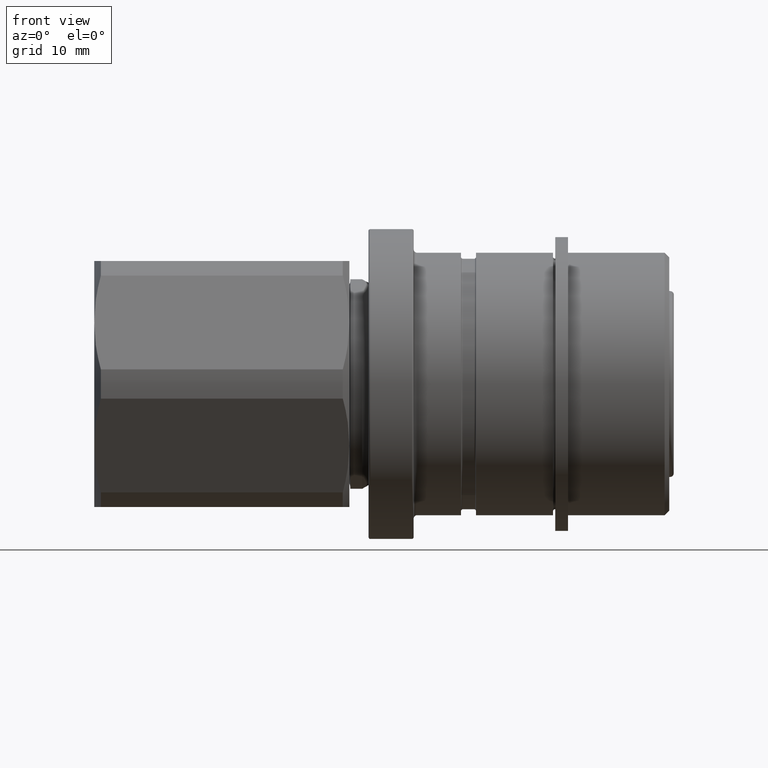
[diagram: clean part render]
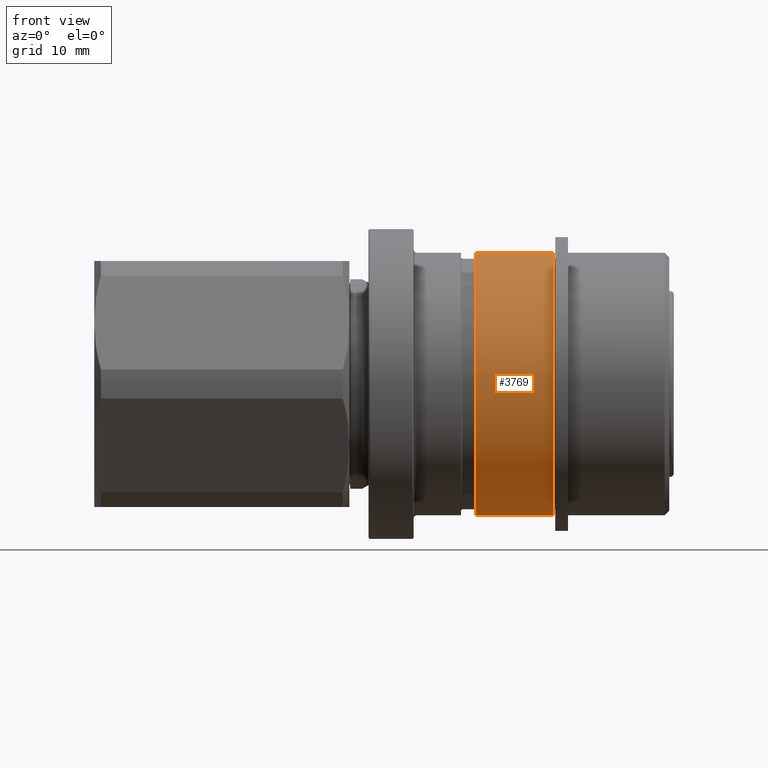
[diagram: same view with one face highlighted and labeled with its STEP entity id]
A machine part, front view. The second image highlights one B-rep face of the part: STEP entity #3769.
In plain terms, the highlighted cylindrical surface (partial cylindrical patch) has radius 14.4 mm, axis along (-1, -0, -0).
Its self-contained STEP definition (entity closure, byte-faithful):
#17 = DIRECTION ( 'NONE',  ( -1.000000000000000000, -0.0000000000000000000, -0.0000000000000000000 ) ) ;
#113 = DIRECTION ( 'NONE',  ( 0.0000000000000000000, 0.0000000000000000000, 1.000000000000000000 ) ) ;
#138 = CARTESIAN_POINT ( 'NONE',  ( 29.20000000000000300, -0.02927498360198051200, 4.102387834613020600E-016 ) ) ;
#181 = EDGE_CURVE ( 'NONE', #4257, #4134, #1485, .T. ) ;
#308 = EDGE_CURVE ( 'NONE', #4134, #4242, #1045, .T. ) ;
#372 = EDGE_CURVE ( 'NONE', #4283, #4242, #1110, .T. ) ;
#387 = AXIS2_PLACEMENT_3D ( 'NONE', #3060, #2903, #3127 ) ;
#398 = EDGE_CURVE ( 'NONE', #4257, #4283, #1138, .T. ) ;
#507 = FACE_OUTER_BOUND ( 'NONE', #1376, .T. ) ;
#508 = CYLINDRICAL_SURFACE ( 'NONE', #867, 14.40000000000000000 ) ;
#751 = AXIS2_PLACEMENT_3D ( 'NONE', #2118, #2071, #2197 ) ;
#867 = AXIS2_PLACEMENT_3D ( 'NONE', #138, #17, #113 ) ;
#1045 = LINE ( 'NONE', #2154, #1047 ) ;
#1047 = VECTOR ( 'NONE', #2076, 1000.000000000000000 ) ;
#1110 = CIRCLE ( 'NONE', #751, 14.40000000000000200 ) ;
#1138 = LINE ( 'NONE', #1997, #1139 ) ;
#1139 = VECTOR ( 'NONE', #1984, 1000.000000000000000 ) ;
#1376 = EDGE_LOOP ( 'NONE', ( #1623, #1656, #1659, #1613 ) ) ;
#1485 = CIRCLE ( 'NONE', #387, 14.40000000000000000 ) ;
#1613 = ORIENTED_EDGE ( 'NONE', *, *, #372, .F. ) ;
#1623 = ORIENTED_EDGE ( 'NONE', *, *, #398, .F. ) ;
#1656 = ORIENTED_EDGE ( 'NONE', *, *, #181, .T. ) ;
#1659 = ORIENTED_EDGE ( 'NONE', *, *, #308, .T. ) ;
#1984 = DIRECTION ( 'NONE',  ( -1.000000000000000000, -0.0000000000000000000, -0.0000000000000000000 ) ) ;
#1997 = CARTESIAN_POINT ( 'NONE',  ( 29.20000000000000300, -0.02927498360197874900, -14.40000000000000000 ) ) ;
#2071 = DIRECTION ( 'NONE',  ( -1.000000000000000000, -0.0000000000000000000, -0.0000000000000000000 ) ) ;
#2076 = DIRECTION ( 'NONE',  ( -1.000000000000000000, -0.0000000000000000000, -0.0000000000000000000 ) ) ;
#2118 = CARTESIAN_POINT ( 'NONE',  ( 40.99999999999999300, -0.02927498360198051200, 4.102387834613020600E-016 ) ) ;
#2154 = CARTESIAN_POINT ( 'NONE',  ( 29.20000000000000300, -0.02927498360198051200, 14.40000000000000000 ) ) ;
#2197 = DIRECTION ( 'NONE',  ( 0.0000000000000000000, 0.0000000000000000000, 1.000000000000000000 ) ) ;
#2475 = CARTESIAN_POINT ( 'NONE',  ( 49.45000000000001000, -0.02927498360198051200, 14.40000000000000000 ) ) ;
#2903 = DIRECTION ( 'NONE',  ( -1.000000000000000000, -0.0000000000000000000, -0.0000000000000000000 ) ) ;
#3060 = CARTESIAN_POINT ( 'NONE',  ( 49.45000000000001000, -0.02927498360198051200, 4.102387834613020600E-016 ) ) ;
#3127 = DIRECTION ( 'NONE',  ( 0.0000000000000000000, 0.0000000000000000000, 1.000000000000000000 ) ) ;
#3662 = CARTESIAN_POINT ( 'NONE',  ( 40.99999999999999300, -0.02927498360197874900, -14.40000000000000400 ) ) ;
#3686 = CARTESIAN_POINT ( 'NONE',  ( 49.45000000000001000, -0.02927498360197874900, -14.40000000000000000 ) ) ;
#3769 = ADVANCED_FACE ( 'NONE', ( #507 ), #508, .T. ) ;
#3877 = CARTESIAN_POINT ( 'NONE',  ( 40.99999999999999300, -0.02927498360198051200, 14.40000000000000200 ) ) ;
#4134 = VERTEX_POINT ( 'NONE', #2475 ) ;
#4242 = VERTEX_POINT ( 'NONE', #3877 ) ;
#4257 = VERTEX_POINT ( 'NONE', #3686 ) ;
#4283 = VERTEX_POINT ( 'NONE', #3662 ) ;